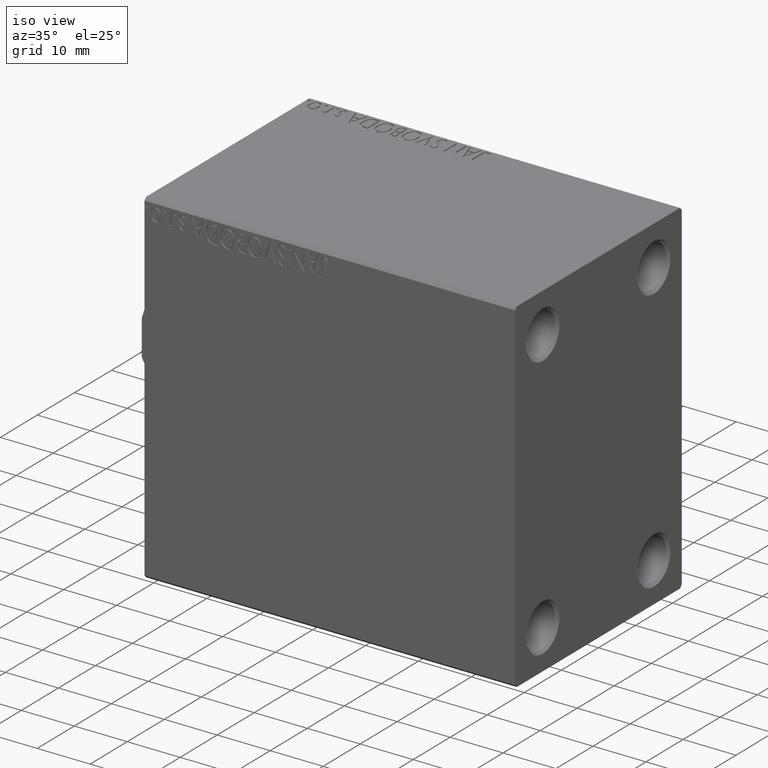
[diagram: clean part render]
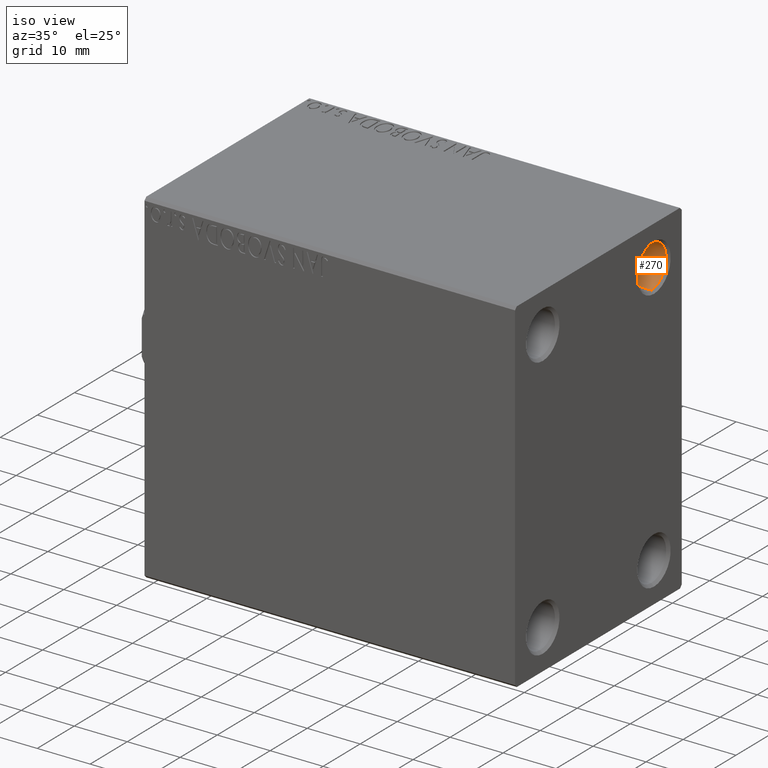
[diagram: same view with one face highlighted and labeled with its STEP entity id]
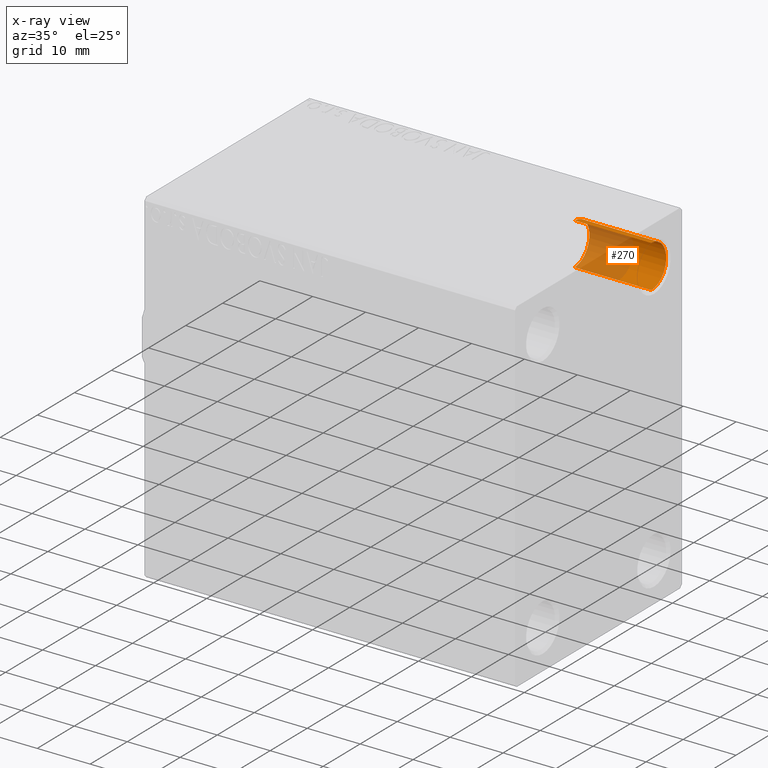
[diagram: x-ray of the same camera — body ghosted, the highlighted face saturated]
A machine part, iso view. The second image highlights one B-rep face of the part: STEP entity #270.
The next image is the same camera in x-ray: the body ghosted, the highlighted face saturated — about 53% of this face is hidden behind the body in this view.
In plain terms, the highlighted cylindrical surface (edge-blend (fillet) strip) has radius 4 mm, axis along (1, 0, 0).
Its self-contained STEP definition (entity closure, byte-faithful):
#270 = ADVANCED_FACE ( 'NONE', ( #21455 ), #30814, .F. ) ;
#2140 = EDGE_LOOP ( 'NONE', ( #27157, #14653, #6001, #29431 ) ) ;
#2567 = EDGE_CURVE ( 'NONE', #40656, #37226, #28249, .T. ) ;
#4292 = CARTESIAN_POINT ( 'NONE',  ( 70.00000000000000000, 15.00000000000000178, 25.00000000000000000 ) ) ;
#6001 = ORIENTED_EDGE ( 'NONE', *, *, #18240, .F. ) ;
#6215 = AXIS2_PLACEMENT_3D ( 'NONE', #4292, #35046, #7622 ) ;
#7622 = DIRECTION ( 'NONE',  ( 0.000000000000000000, 0.000000000000000000, 1.000000000000000000 ) ) ;
#7733 = VECTOR ( 'NONE', #9806, 1000.000000000000000 ) ;
#9806 = DIRECTION ( 'NONE',  ( 1.000000000000000000, -0.000000000000000000, -0.000000000000000000 ) ) ;
#11539 = CARTESIAN_POINT ( 'NONE',  ( 69.50000000000001421, 15.00000000000000178, 29.00000000000000000 ) ) ;
#14114 = VECTOR ( 'NONE', #28680, 1000.000000000000000 ) ;
#14231 = DIRECTION ( 'NONE',  ( -1.000000000000000000, 0.000000000000000000, 0.000000000000000000 ) ) ;
#14653 = ORIENTED_EDGE ( 'NONE', *, *, #2567, .T. ) ;
#17034 = VERTEX_POINT ( 'NONE', #21888 ) ;
#18013 = CARTESIAN_POINT ( 'NONE',  ( 55.00000000000000711, 15.00000000000000178, 25.00000000000000000 ) ) ;
#18240 = EDGE_CURVE ( 'NONE', #29421, #37226, #33155, .T. ) ;
#21455 = FACE_OUTER_BOUND ( 'NONE', #2140, .T. ) ;
#21888 = CARTESIAN_POINT ( 'NONE',  ( 55.00000000000000711, 15.00000000000000178, 28.99999999999999645 ) ) ;
#24189 = CIRCLE ( 'NONE', #29161, 3.999999999999996447 ) ;
#25970 = EDGE_CURVE ( 'NONE', #17034, #29421, #33451, .T. ) ;
#27157 = ORIENTED_EDGE ( 'NONE', *, *, #33325, .T. ) ;
#28249 = LINE ( 'NONE', #35157, #14114 ) ;
#28426 = CARTESIAN_POINT ( 'NONE',  ( 69.50000000000001421, 15.00000000000000178, 21.00000000000000000 ) ) ;
#28680 = DIRECTION ( 'NONE',  ( 1.000000000000000000, -0.000000000000000000, -0.000000000000000000 ) ) ;
#29161 = AXIS2_PLACEMENT_3D ( 'NONE', #18013, #14231, #39342 ) ;
#29421 = VERTEX_POINT ( 'NONE', #11539 ) ;
#29431 = ORIENTED_EDGE ( 'NONE', *, *, #25970, .F. ) ;
#30290 = AXIS2_PLACEMENT_3D ( 'NONE', #41064, #37730, #34375 ) ;
#30755 = CARTESIAN_POINT ( 'NONE',  ( 70.00000000000000000, 15.00000000000000178, 29.00000000000000000 ) ) ;
#30814 = CYLINDRICAL_SURFACE ( 'NONE', #6215, 4.000000000000000000 ) ;
#32607 = CARTESIAN_POINT ( 'NONE',  ( 55.00000000000000711, 15.00000000000000178, 21.00000000000000355 ) ) ;
#33155 = CIRCLE ( 'NONE', #30290, 4.000000000000000000 ) ;
#33325 = EDGE_CURVE ( 'NONE', #17034, #40656, #24189, .T. ) ;
#33451 = LINE ( 'NONE', #30755, #7733 ) ;
#34375 = DIRECTION ( 'NONE',  ( 0.000000000000000000, 0.000000000000000000, -1.000000000000000000 ) ) ;
#35046 = DIRECTION ( 'NONE',  ( 1.000000000000000000, -0.000000000000000000, -0.000000000000000000 ) ) ;
#35157 = CARTESIAN_POINT ( 'NONE',  ( 70.00000000000000000, 15.00000000000000178, 21.00000000000000000 ) ) ;
#37226 = VERTEX_POINT ( 'NONE', #28426 ) ;
#37730 = DIRECTION ( 'NONE',  ( -1.000000000000000000, 0.000000000000000000, 0.000000000000000000 ) ) ;
#39342 = DIRECTION ( 'NONE',  ( 0.000000000000000000, 0.000000000000000000, 1.000000000000000000 ) ) ;
#40656 = VERTEX_POINT ( 'NONE', #32607 ) ;
#41064 = CARTESIAN_POINT ( 'NONE',  ( 69.50000000000001421, 15.00000000000000178, 25.00000000000000000 ) ) ;